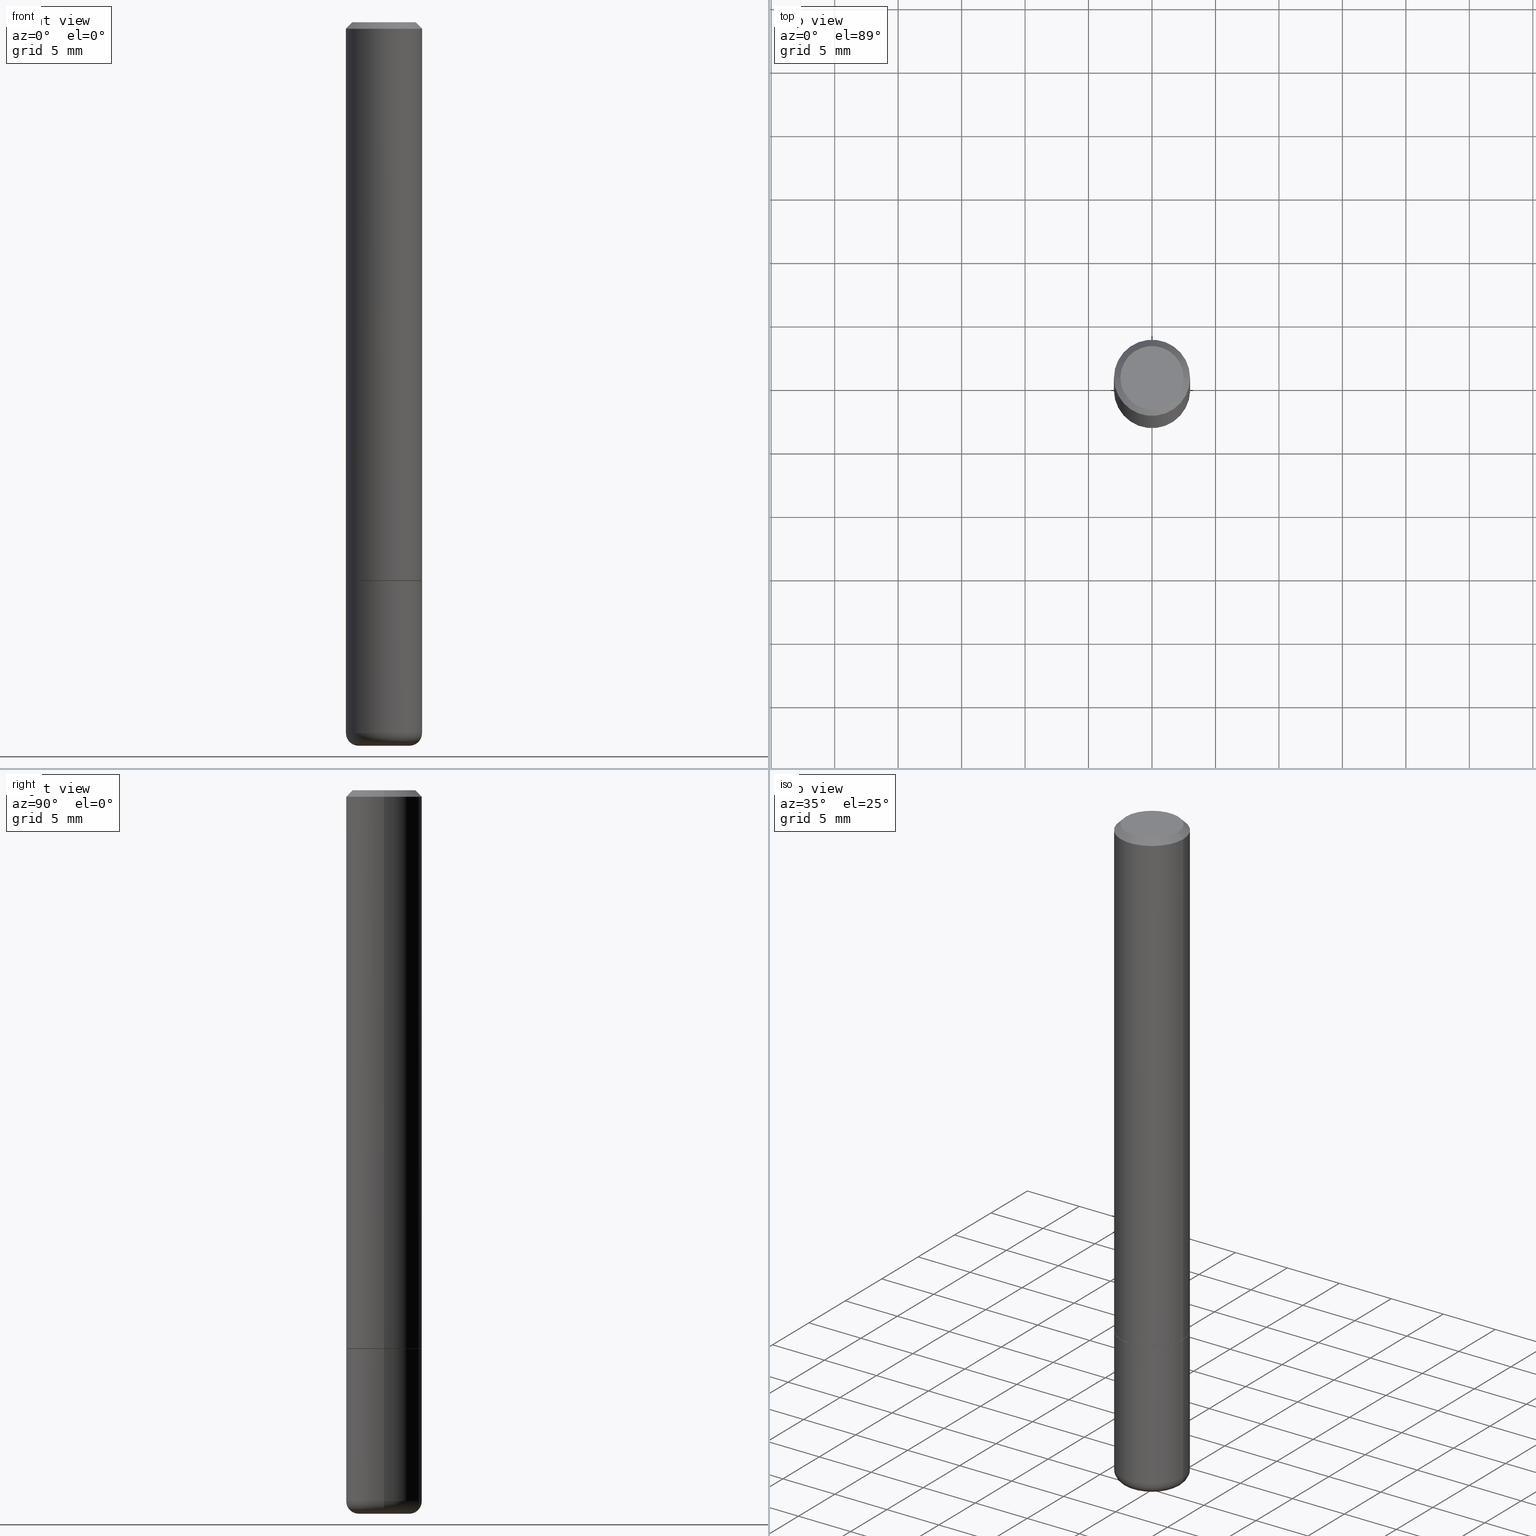
[diagram: canonical four-view strip — front | top / right | iso, engineering-drawing reading convention]
A machine part, canonical four-view strip (front | top / right | iso — engineering-drawing reading convention). The complete STEP part file that produces these views, byte-faithful:
ISO-10303-21;
HEADER;
FILE_DESCRIPTION (( 'STEP AP203' ),
    '1' );
FILE_NAME ('47003.STEP',
    '2024-03-05T10:07:26',
    ( '' ),
    ( '' ),
    'SwSTEP 2.0',
    'SolidWorks 2023',
    '' );
FILE_SCHEMA (( 'CONFIG_CONTROL_DESIGN' ));
ENDSEC;

DATA;
#1 = CARTESIAN_POINT ( 'NONE',  ( 4.890937612370288923E-31, -6.982962677686312563E-17, -0.02000000000000006287 ) ) ;
#2 = ADVANCED_FACE ( 'NONE', ( #26 ), #379, .T. ) ;
#3 = CIRCLE ( 'NONE', #148, 0.09809999999999970133 ) ;
#4 = DIRECTION ( 'NONE',  ( -1.000000000000000000, 7.105427357600989237E-15, 0.000000000000000000 ) ) ;
#5 = EDGE_LOOP ( 'NONE', ( #274, #294, #136, #409 ) ) ;
#6 = DIRECTION ( 'NONE',  ( 1.000000000000000000, -6.982962677686266711E-15, 0.000000000000000000 ) ) ;
#7 = ORIENTED_EDGE ( 'NONE', *, *, #195, .T. ) ;
#8 = DIRECTION ( 'NONE',  ( -2.445468806185136877E-29, 3.491481338843145188E-15, 1.000000000000000000 ) ) ;
#9 = CARTESIAN_POINT ( 'NONE',  ( 5.391525076996371277E-29, -7.697668907747483125E-15, -2.204700000000000326 ) ) ;
#10 = DIRECTION ( 'NONE',  ( 1.000000000000000000, -6.982962677686265133E-15, 0.000000000000000000 ) ) ;
#11 = EDGE_LOOP ( 'NONE', ( #260, #145, #248, #238 ) ) ;
#12 = CC_DESIGN_DATE_AND_TIME_ASSIGNMENT ( #150, #273, ( #305 ) ) ;
#13 = EDGE_CURVE ( 'NONE', #407, #301, #51, .T. ) ;
#14 = LENGTH_MEASURE_WITH_UNIT ( LENGTH_MEASURE( 0.02539999999999999897 ), #80 );
#15 = PERSON_AND_ORGANIZATION ( #328, #363 ) ;
#16 = ORIENTED_EDGE ( 'NONE', *, *, #275, .F. ) ;
#17 = PRODUCT ( '47003', '47003', '', ( #406 ) ) ;
#18 = VERTEX_POINT ( 'NONE', #346 ) ;
#19 = VECTOR ( 'NONE', #8, 39.37007874015748143 ) ;
#20 = COORDINATED_UNIVERSAL_TIME_OFFSET ( 5, 0, .BEHIND. ) ;
#21 = DATE_AND_TIME ( #404, #96 ) ;
#22 = ORIENTED_EDGE ( 'NONE', *, *, #358, .T. ) ;
#23 = CALENDAR_DATE ( 2024, 5, 3 ) ;
#24 = APPLICATION_CONTEXT ( 'configuration controlled 3d designs of mechanical parts and assemblies' ) ;
#25 = DATE_AND_TIME ( #48, #38 ) ;
#26 = FACE_OUTER_BOUND ( 'NONE', #114, .T. ) ;
#27 = DIRECTION ( 'NONE',  ( 2.438088387897960049E-29, -3.491481338843145188E-15, -1.000000000000000000 ) ) ;
#28 = CIRCLE ( 'NONE', #318, 0.1181000000000000383 ) ;
#29 = CARTESIAN_POINT ( 'NONE',  ( 4.236285612954512392E-29, -6.048293123277981078E-15, -1.732299999999999951 ) ) ;
#30 = DIRECTION ( 'NONE',  ( -0.7071067811865460184, 2.468850131082241283E-15, -0.7071067811865490160 ) ) ;
#31 = CARTESIAN_POINT ( 'NONE',  ( 6.850286386810205815E-16, 0.09809999999999970133, -1.653710510013444322E-16 ) ) ;
#32 = ADVANCED_FACE ( 'NONE', ( #303 ), #89, .T. ) ;
#33 = CARTESIAN_POINT ( 'NONE',  ( 5.487876547960064752E-29, -7.835233272497900762E-15, -2.244099999999999540 ) ) ;
#34 = CARTESIAN_POINT ( 'NONE',  ( 0.1181000000000000383, -8.800544403136812319E-16, -0.02000000000000006287 ) ) ;
#35 = AXIS2_PLACEMENT_3D ( 'NONE', #127, #230, #250 ) ;
#36 = AXIS2_PLACEMENT_3D ( 'NONE', #393, #331, #42 ) ;
#37 = FACE_OUTER_BOUND ( 'NONE', #216, .T. ) ;
#38 = LOCAL_TIME ( 5, 7, 26.00000000000000000, #184 ) ;
#39 = ADVANCED_FACE ( 'NONE', ( #249 ), #246, .T. ) ;
#40 = CARTESIAN_POINT ( 'NONE',  ( 0.000000000000000000, 0.000000000000000000, 0.000000000000000000 ) ) ;
#41 = VERTEX_POINT ( 'NONE', #347 ) ;
#42 = DIRECTION ( 'NONE',  ( 1.000000000000000000, -6.982962677686264344E-15, 0.000000000000000000 ) ) ;
#43 = AXIS2_PLACEMENT_3D ( 'NONE', #386, #352, #233 ) ;
#44 = ORIENTED_EDGE ( 'NONE', *, *, #45, .F. ) ;
#45 = EDGE_CURVE ( 'NONE', #176, #153, #193, .T. ) ;
#46 = DIRECTION ( 'NONE',  ( 1.000000000000000000, 0.000000000000000000, 0.000000000000000000 ) ) ;
#47 = EDGE_LOOP ( 'NONE', ( #240, #336, #312, #335 ) ) ;
#48 = CALENDAR_DATE ( 2024, 5, 3 ) ;
#49 = ORIENTED_EDGE ( 'NONE', *, *, #171, .F. ) ;
#50 =( NAMED_UNIT ( * ) SI_UNIT ( $, .STERADIAN. ) SOLID_ANGLE_UNIT ( ) );
#51 = LINE ( 'NONE', #155, #333 ) ;
#52 = APPROVAL_STATUS ( 'not_yet_approved' ) ;
#53 = AXIS2_PLACEMENT_3D ( 'NONE', #9, #141, #264 ) ;
#54 = PERSON_AND_ORGANIZATION_ROLE ( 'design_supplier' ) ;
#55 = ADVANCED_FACE ( 'NONE', ( #83 ), #209, .F. ) ;
#56 = ORIENTED_EDGE ( 'NONE', *, *, #93, .F. ) ;
#57 = ORIENTED_EDGE ( 'NONE', *, *, #384, .F. ) ;
#58 = CARTESIAN_POINT ( 'NONE',  ( -8.663966738982324366E-45, 1.236984831415771234E-30, 3.542865366783341331E-16 ) ) ;
#59 = EDGE_CURVE ( 'NONE', #301, #81, #231, .T. ) ;
#60 = AXIS2_PLACEMENT_3D ( 'NONE', #134, #164, #106 ) ;
#61 = DIRECTION ( 'NONE',  ( -2.445468806185136597E-29, 3.491481338843145583E-15, 1.000000000000000000 ) ) ;
#62 = CARTESIAN_POINT ( 'NONE',  ( -0.1181000000000000383, 7.548582654578852602E-16, -0.02000000000000006287 ) ) ;
#63 = EDGE_CURVE ( 'NONE', #242, #407, #101, .T. ) ;
#64 = CARTESIAN_POINT ( 'NONE',  ( 4.233840144148326789E-29, -6.044801641939137282E-15, -1.731299999999999839 ) ) ;
#65 = AXIS2_PLACEMENT_3D ( 'NONE', #339, #27, #92 ) ;
#66 = CC_DESIGN_PERSON_AND_ORGANIZATION_ASSIGNMENT ( #334, #151, ( #403 ) ) ;
#67 = CARTESIAN_POINT ( 'NONE',  ( 0.1180999999999999966, -8.246878922347480654E-16, 5.758764772215000440E-30 ) ) ;
#68 = CARTESIAN_POINT ( 'NONE',  ( 4.236285612954512392E-29, -6.048293123277981078E-15, -1.732299999999999951 ) ) ;
#69 = FACE_OUTER_BOUND ( 'NONE', #265, .T. ) ;
#70 = ORIENTED_EDGE ( 'NONE', *, *, #63, .F. ) ;
#71 = EDGE_CURVE ( 'NONE', #117, #183, #413, .T. ) ;
#72 = CLOSED_SHELL ( 'NONE', ( #353, #159, #39, #307, #77, #32, #418, #55 ) ) ;
#73 = AXIS2_PLACEMENT_3D ( 'NONE', #196, #267, #6 ) ;
#74 = FACE_OUTER_BOUND ( 'NONE', #47, .T. ) ;
#75 = DIRECTION ( 'NONE',  ( -2.445468806185136597E-29, 3.491481338843145583E-15, 1.000000000000000000 ) ) ;
#76 = CARTESIAN_POINT ( 'NONE',  ( 4.890937612370288923E-31, -6.982962677686312563E-17, -0.02000000000000006287 ) ) ;
#77 = ADVANCED_FACE ( 'NONE', ( #99 ), #100, .T. ) ;
#78 = ORIENTED_EDGE ( 'NONE', *, *, #124, .F. ) ;
#79 = ADVANCED_BREP_SHAPE_REPRESENTATION ( '47003', ( #229, #210, #287 ), #389 ) ;
#80 =( LENGTH_UNIT ( ) NAMED_UNIT ( * ) SI_UNIT ( $, .METRE. ) );
#81 = VERTEX_POINT ( 'NONE', #357 ) ;
#82 = DIRECTION ( 'NONE',  ( 0.000000000000000000, 0.000000000000000000, 1.000000000000000000 ) ) ;
#83 = FACE_OUTER_BOUND ( 'NONE', #290, .T. ) ;
#84 = PERSON_AND_ORGANIZATION_ROLE ( 'creator' ) ;
#85 = ORIENTED_EDGE ( 'NONE', *, *, #288, .T. ) ;
#86 = EDGE_CURVE ( 'NONE', #242, #81, #388, .T. ) ;
#87 = APPROVAL_ROLE ( '' ) ;
#88 = ORIENTED_EDGE ( 'NONE', *, *, #171, .T. ) ;
#89 = CONICAL_SURFACE ( 'NONE', #396, 0.1170999999999999958, 0.7853981633976532262 ) ;
#90 = CONICAL_SURFACE ( 'NONE', #36, 0.1170999999999999958, 0.7853981633976532262 ) ;
#91 = APPLICATION_PROTOCOL_DEFINITION ( 'international standard', 'config_control_design', 1994, #228 ) ;
#92 = DIRECTION ( 'NONE',  ( -1.000000000000000000, 6.982962677686265922E-15, -4.876176775795935793E-29 ) ) ;
#93 = EDGE_CURVE ( 'NONE', #405, #18, #191, .T. ) ;
#94 = DIRECTION ( 'NONE',  ( 2.445468806185136597E-29, -3.491481338843145583E-15, -1.000000000000000000 ) ) ;
#95 = DIRECTION ( 'NONE',  ( 0.7071067811866923458, -2.468850131083773646E-15, 0.7071067811864025776 ) ) ;
#96 = LOCAL_TIME ( 5, 7, 26.00000000000000000, #278 ) ;
#97 = PERSON_AND_ORGANIZATION_ROLE ( 'classification_officer' ) ;
#98 = CARTESIAN_POINT ( 'NONE',  ( -0.1181000000000001215, 8.391509709326791832E-16, -5.809262341591049389E-30 ) ) ;
#99 = FACE_OUTER_BOUND ( 'NONE', #169, .T. ) ;
#100 = CYLINDRICAL_SURFACE ( 'NONE', #43, 0.1181000000000001215 ) ;
#101 = CIRCLE ( 'NONE', #172, 0.1180999999999999966 ) ;
#102 = CC_DESIGN_SECURITY_CLASSIFICATION ( #305, ( #403 ) ) ;
#103 = CARTESIAN_POINT ( 'NONE',  ( 0.000000000000000000, 0.000000000000000000, 0.000000000000000000 ) ) ;
#104 = CARTESIAN_POINT ( 'NONE',  ( 5.391525076996371277E-29, -7.697668907747483125E-15, -2.204700000000000326 ) ) ;
#105 = DESIGN_CONTEXT ( 'detailed design', #228, 'design' ) ;
#106 = DIRECTION ( 'NONE',  ( 1.000000000000000000, -6.982962677686266711E-15, 0.000000000000000000 ) ) ;
#107 = ORIENTED_EDGE ( 'NONE', *, *, #218, .T. ) ;
#108 = VECTOR ( 'NONE', #30, 39.37007874015748143 ) ;
#109 = DIRECTION ( 'NONE',  ( -2.445468806185136597E-29, 3.491481338843145583E-15, 1.000000000000000000 ) ) ;
#110 = CARTESIAN_POINT ( 'NONE',  ( 4.236285612954512392E-29, -6.048293123277981078E-15, -1.732299999999999951 ) ) ;
#111 = DIRECTION ( 'NONE',  ( 1.000000000000000000, -6.982962677686268288E-15, 4.883557194083112901E-29 ) ) ;
#112 = ORIENTED_EDGE ( 'NONE', *, *, #177, .F. ) ;
#113 = PERSON_AND_ORGANIZATION ( #328, #363 ) ;
#114 = EDGE_LOOP ( 'NONE', ( #268, #142 ) ) ;
#115 = AXIS2_PLACEMENT_3D ( 'NONE', #40, #399, #395 ) ;
#116 = PERSON_AND_ORGANIZATION ( #328, #363 ) ;
#117 = VERTEX_POINT ( 'NONE', #130 ) ;
#118 = DIRECTION ( 'NONE',  ( 1.000000000000000000, -6.982962677686265922E-15, 4.876176775795935793E-29 ) ) ;
#119 = APPROVAL_DATE_TIME ( #408, #356 ) ;
#120 = PERSON_AND_ORGANIZATION ( #328, #363 ) ;
#121 = ORIENTED_EDGE ( 'NONE', *, *, #390, .T. ) ;
#122 = CIRCLE ( 'NONE', #348, 0.1181000000000002048 ) ;
#123 = AXIS2_PLACEMENT_3D ( 'NONE', #235, #286, #4 ) ;
#124 = EDGE_CURVE ( 'NONE', #299, #368, #28, .T. ) ;
#125 = DIRECTION ( 'NONE',  ( -2.438088387897960049E-29, 3.491481338843145188E-15, 1.000000000000000000 ) ) ;
#126 = DIRECTION ( 'NONE',  ( 1.000000000000000000, -6.982962677686264344E-15, 0.000000000000000000 ) ) ;
#127 = CARTESIAN_POINT ( 'NONE',  ( 0.000000000000000000, 0.000000000000000000, 0.000000000000000000 ) ) ;
#128 = DIRECTION ( 'NONE',  ( 1.000000000000000000, -6.982962677686264344E-15, 0.000000000000000000 ) ) ;
#129 = DIRECTION ( 'NONE',  ( -2.445468806185136597E-29, 3.491481338843145583E-15, 1.000000000000000000 ) ) ;
#130 = CARTESIAN_POINT ( 'NONE',  ( -0.1170999999999999958, -5.210949125354681487E-15, -1.732299999999999729 ) ) ;
#131 = APPROVAL ( #241, 'UNSPECIFIED' ) ;
#132 = DIRECTION ( 'NONE',  ( 1.000000000000000000, -6.982962677686266711E-15, 0.000000000000000000 ) ) ;
#133 = AXIS2_PLACEMENT_3D ( 'NONE', #350, #61, #128 ) ;
#134 = CARTESIAN_POINT ( 'NONE',  ( 0.07870000000000000606, -8.247228070481392959E-15, -2.204700000000000326 ) ) ;
#135 = CARTESIAN_POINT ( 'NONE',  ( -0.1180999999999998995, -6.858517936814806506E-15, -2.204700000000000326 ) ) ;
#136 = ORIENTED_EDGE ( 'NONE', *, *, #86, .T. ) ;
#137 = LINE ( 'NONE', #391, #19 ) ;
#138 = ADVANCED_FACE ( 'NONE', ( #255 ), #317, .T. ) ;
#139 = CLOSED_SHELL ( 'NONE', ( #295, #327, #345, #138, #337, #2 ) ) ;
#140 = TOROIDAL_SURFACE ( 'NONE', #53, 0.07870000000000000606, 0.03939999999999978936 ) ;
#141 = DIRECTION ( 'NONE',  ( -2.445468806185136597E-29, 3.491481338843145583E-15, 1.000000000000000000 ) ) ;
#142 = ORIENTED_EDGE ( 'NONE', *, *, #315, .F. ) ;
#143 = CC_DESIGN_PERSON_AND_ORGANIZATION_ASSIGNMENT ( #113, #208, ( #17 ) ) ;
#144 = CARTESIAN_POINT ( 'NONE',  ( 4.236285612954511832E-29, -6.048293123277980289E-15, -1.732299999999999729 ) ) ;
#145 = ORIENTED_EDGE ( 'NONE', *, *, #315, .T. ) ;
#146 = EDGE_LOOP ( 'NONE', ( #44, #244, #85, #280 ) ) ;
#147 = PERSON_AND_ORGANIZATION ( #328, #363 ) ;
#148 = AXIS2_PLACEMENT_3D ( 'NONE', #283, #129, #415 ) ;
#149 = ORIENTED_EDGE ( 'NONE', *, *, #154, .F. ) ;
#150 = DATE_AND_TIME ( #270, #173 ) ;
#151 = PERSON_AND_ORGANIZATION_ROLE ( 'creator' ) ;
#152 = ORIENTED_EDGE ( 'NONE', *, *, #197, .T. ) ;
#153 = VERTEX_POINT ( 'NONE', #253 ) ;
#154 = EDGE_CURVE ( 'NONE', #18, #183, #122, .T. ) ;
#155 = CARTESIAN_POINT ( 'NONE',  ( -0.1180999999999999966, 8.391509709326782957E-16, -5.809262341591043784E-30 ) ) ;
#156 = AXIS2_PLACEMENT_3D ( 'NONE', #243, #125, #118 ) ;
#157 = DIRECTION ( 'NONE',  ( -2.445468806185136597E-29, 3.491481338843145583E-15, 1.000000000000000000 ) ) ;
#158 = CARTESIAN_POINT ( 'NONE',  ( 5.391525076996371277E-29, -7.697668907747483125E-15, -2.204700000000000326 ) ) ;
#159 = ADVANCED_FACE ( 'NONE', ( #412 ), #221, .T. ) ;
#160 = DIRECTION ( 'NONE',  ( 1.000000000000000000, -6.982962677686268288E-15, 0.000000000000000000 ) ) ;
#161 = AXIS2_PLACEMENT_3D ( 'NONE', #144, #109, #174 ) ;
#162 = DIRECTION ( 'NONE',  ( 1.000000000000000000, -6.982962677686269077E-15, 0.000000000000000000 ) ) ;
#163 = DIRECTION ( 'NONE',  ( -1.000000000000000000, 6.982962677686265922E-15, -4.876176775795935793E-29 ) ) ;
#164 = DIRECTION ( 'NONE',  ( -6.982962677686266711E-15, -1.000000000000000000, 3.491481338843145583E-15 ) ) ;
#165 = AXIS2_PLACEMENT_3D ( 'NONE', #103, #381, #251 ) ;
#166 = CIRCLE ( 'NONE', #60, 0.03939999999999978936 ) ;
#167 = CARTESIAN_POINT ( 'NONE',  ( 0.1170999999999999958, -6.865998052835041749E-15, -1.732299999999999729 ) ) ;
#168 = DIRECTION ( 'NONE',  ( 1.000000000000000000, -6.982962677686269077E-15, 0.000000000000000000 ) ) ;
#169 = EDGE_LOOP ( 'NONE', ( #112, #7, #257, #78 ) ) ;
#170 = FACE_OUTER_BOUND ( 'NONE', #411, .T. ) ;
#171 = EDGE_CURVE ( 'NONE', #405, #117, #205, .T. ) ;
#172 = AXIS2_PLACEMENT_3D ( 'NONE', #158, #281, #282 ) ;
#173 = LOCAL_TIME ( 5, 7, 26.00000000000000000, #20 ) ;
#174 = DIRECTION ( 'NONE',  ( 1.000000000000000000, -6.982962677686264344E-15, 0.000000000000000000 ) ) ;
#175 = ORIENTED_EDGE ( 'NONE', *, *, #195, .F. ) ;
#176 = VERTEX_POINT ( 'NONE', #192 ) ;
#177 = EDGE_CURVE ( 'NONE', #183, #299, #321, .T. ) ;
#178 = DIRECTION ( 'NONE',  ( -2.445468806185136877E-29, 3.491481338843145188E-15, 1.000000000000000000 ) ) ;
#179 = VECTOR ( 'NONE', #95, 39.37007874015748854 ) ;
#180 = DIRECTION ( 'NONE',  ( -2.445468806185136597E-29, 3.491481338843145583E-15, 1.000000000000000000 ) ) ;
#181 = COORDINATED_UNIVERSAL_TIME_OFFSET ( 5, 0, .BEHIND. ) ;
#182 = CARTESIAN_POINT ( 'NONE',  ( 0.000000000000000000, 0.000000000000000000, 0.000000000000000000 ) ) ;
#183 = VERTEX_POINT ( 'NONE', #351 ) ;
#184 = COORDINATED_UNIVERSAL_TIME_OFFSET ( 5, 0, .BEHIND. ) ;
#185 = CARTESIAN_POINT ( 'NONE',  ( 4.236285612954511832E-29, -6.048293123277980289E-15, -1.732299999999999729 ) ) ;
#186 = DIRECTION ( 'NONE',  ( -2.445468806185136877E-29, 3.491481338843145188E-15, 1.000000000000000000 ) ) ;
#187 = CIRCLE ( 'NONE', #324, 0.1181000000000002048 ) ;
#188 = CONICAL_SURFACE ( 'NONE', #410, 0.1181000000000000383, 0.7853981633974461696 ) ;
#189 = CARTESIAN_POINT ( 'NONE',  ( -0.1170999999999999958, -5.216247579702903100E-15, -1.732299999999999729 ) ) ;
#190 = EDGE_CURVE ( 'NONE', #153, #299, #354, .T. ) ;
#191 = LINE ( 'NONE', #285, #179 ) ;
#192 = CARTESIAN_POINT ( 'NONE',  ( 0.09809999999999970133, -7.765346469475326737E-16, 3.542865366783392114E-16 ) ) ;
#193 = CIRCLE ( 'NONE', #362, 0.09809999999999970133 ) ;
#194 = DIRECTION ( 'NONE',  ( -2.445468806185136597E-29, 3.491481338843145583E-15, 1.000000000000000000 ) ) ;
#195 = EDGE_CURVE ( 'NONE', #183, #18, #187, .T. ) ;
#196 = CARTESIAN_POINT ( 'NONE',  ( 4.890937612370288923E-31, -6.982962677686312563E-17, -0.02000000000000006287 ) ) ;
#197 = EDGE_CURVE ( 'NONE', #153, #176, #3, .T. ) ;
#198 = DIRECTION ( 'NONE',  ( 0.7071067811865460184, -7.319954787623251312E-15, -0.7071067811865490160 ) ) ;
#199 = EDGE_LOOP ( 'NONE', ( #88, #276, #149, #56 ) ) ;
#200 = AXIS2_PLACEMENT_3D ( 'NONE', #33, #319, #162 ) ;
#201 = DIRECTION ( 'NONE',  ( 2.445468806185136597E-29, -3.491481338843145583E-15, -1.000000000000000000 ) ) ;
#202 = DIRECTION ( 'NONE',  ( -2.445468806185136597E-29, 3.491481338843145583E-15, 1.000000000000000000 ) ) ;
#203 = FACE_OUTER_BOUND ( 'NONE', #199, .T. ) ;
#204 = ORIENTED_EDGE ( 'NONE', *, *, #93, .T. ) ;
#205 = CIRCLE ( 'NONE', #133, 0.1170999999999999958 ) ;
#206 = CC_DESIGN_APPROVAL ( #356, ( #305 ) ) ;
#207 = DATE_TIME_ROLE ( 'creation_date' ) ;
#208 = PERSON_AND_ORGANIZATION_ROLE ( 'design_owner' ) ;
#209 = PLANE ( 'NONE',  #296 ) ;
#210 = MANIFOLD_SOLID_BREP ( 'Body-Move/Copy2[2]', #72 ) ;
#211 = APPROVAL_ROLE ( '' ) ;
#212 = ORIENTED_EDGE ( 'NONE', *, *, #45, .T. ) ;
#213 = PERSON_AND_ORGANIZATION ( #328, #363 ) ;
#214 = APPROVAL_DATE_TIME ( #338, #131 ) ;
#215 = APPROVAL_PERSON_ORGANIZATION ( #213, #356, #375 ) ;
#216 = EDGE_LOOP ( 'NONE', ( #400, #325, #360, #292 ) ) ;
#217 = APPROVAL_STATUS ( 'not_yet_approved' ) ;
#218 = EDGE_CURVE ( 'NONE', #394, #41, #382, .T. ) ;
#219 = ORIENTED_EDGE ( 'NONE', *, *, #266, .F. ) ;
#220 = DIRECTION ( 'NONE',  ( -1.000000000000000000, 6.982962677686266711E-15, 0.000000000000000000 ) ) ;
#221 = CYLINDRICAL_SURFACE ( 'NONE', #35, 0.1181000000000001215 ) ;
#222 = AXIS2_PLACEMENT_3D ( 'NONE', #259, #261, #168 ) ;
#223 = APPROVAL_PERSON_ORGANIZATION ( #120, #373, #87 ) ;
#224 = DIRECTION ( 'NONE',  ( -2.445468806185136877E-29, 3.491481338843145188E-15, 1.000000000000000000 ) ) ;
#225 = PRODUCT_DEFINITION ( 'UNKNOWN', '', #403, #105 ) ;
#226 = DIMENSIONAL_EXPONENTS ( 1.000000000000000000, 0.000000000000000000, 0.000000000000000000, 0.000000000000000000, 0.000000000000000000, 0.000000000000000000, 0.000000000000000000 ) ;
#227 = DIRECTION ( 'NONE',  ( -0.7071067811866923458, 7.493145998870876386E-15, 0.7071067811864025776 ) ) ;
#228 = APPLICATION_CONTEXT ( 'configuration controlled 3d designs of mechanical parts and assemblies' ) ;
#229 = MANIFOLD_SOLID_BREP ( 'Body-Move/Copy2[1]', #139 ) ;
#230 = DIRECTION ( 'NONE',  ( -2.445468806185136597E-29, 3.491481338843145583E-15, 1.000000000000000000 ) ) ;
#231 = CIRCLE ( 'NONE', #402, 0.1180999999999999966 ) ;
#232 = LOCAL_TIME ( 5, 7, 26.00000000000000000, #181 ) ;
#233 = DIRECTION ( 'NONE',  ( 1.000000000000000000, -6.982962677686266711E-15, 4.876176775795935793E-29 ) ) ;
#234 = DIRECTION ( 'NONE',  ( 1.000000000000000000, -6.982962677686265133E-15, 0.000000000000000000 ) ) ;
#235 = CARTESIAN_POINT ( 'NONE',  ( -0.07870000000000000606, -7.138471774704284335E-15, -2.204700000000000326 ) ) ;
#236 = TOROIDAL_SURFACE ( 'NONE', #320, 0.07870000000000000606, 0.03939999999999978936 ) ;
#237 = DIRECTION ( 'NONE',  ( 2.438088387897960049E-29, -3.491481338843145188E-15, -1.000000000000000000 ) ) ;
#238 = ORIENTED_EDGE ( 'NONE', *, *, #313, .F. ) ;
#239 =( NAMED_UNIT ( * ) PLANE_ANGLE_UNIT ( ) SI_UNIT ( $, .RADIAN. ) );
#240 = ORIENTED_EDGE ( 'NONE', *, *, #63, .T. ) ;
#241 = APPROVAL_STATUS ( 'not_yet_approved' ) ;
#242 = VERTEX_POINT ( 'NONE', #284 ) ;
#243 = CARTESIAN_POINT ( 'NONE',  ( 4.236285612954512392E-29, -6.048293123277981078E-15, -1.732299999999999951 ) ) ;
#244 = ORIENTED_EDGE ( 'NONE', *, *, #378, .T. ) ;
#245 = SHAPE_DEFINITION_REPRESENTATION ( #365, #79 ) ;
#246 = CONICAL_SURFACE ( 'NONE', #376, 0.1181000000000000383, 0.7853981633974461696 ) ;
#247 = AXIS2_PLACEMENT_3D ( 'NONE', #68, #298, #10 ) ;
#248 = ORIENTED_EDGE ( 'NONE', *, *, #384, .T. ) ;
#249 = FACE_OUTER_BOUND ( 'NONE', #146, .T. ) ;
#250 = DIRECTION ( 'NONE',  ( 1.000000000000000000, -6.982962677686266711E-15, 4.876176775795935793E-29 ) ) ;
#251 = DIRECTION ( 'NONE',  ( 1.000000000000000000, -6.982962677686266711E-15, 4.876176775795936353E-29 ) ) ;
#252 = DIRECTION ( 'NONE',  ( -2.445468806185136597E-29, 3.491481338843145583E-15, 1.000000000000000000 ) ) ;
#253 = CARTESIAN_POINT ( 'NONE',  ( -0.09809999999999970133, 7.199434520694536111E-16, 3.542865366783292027E-16 ) ) ;
#254 = CC_DESIGN_PERSON_AND_ORGANIZATION_ASSIGNMENT ( #15, #97, ( #305 ) ) ;
#255 = FACE_OUTER_BOUND ( 'NONE', #5, .T. ) ;
#256 = PLANE ( 'NONE',  #156 ) ;
#257 = ORIENTED_EDGE ( 'NONE', *, *, #275, .T. ) ;
#258 = UNCERTAINTY_MEASURE_WITH_UNIT (LENGTH_MEASURE( 1.000000000000000082E-05 ), #302, 'distance_accuracy_value', 'NONE');
#259 = CARTESIAN_POINT ( 'NONE',  ( 5.487876547960064752E-29, -7.835233272497900762E-15, -2.244099999999999540 ) ) ;
#260 = ORIENTED_EDGE ( 'NONE', *, *, #390, .F. ) ;
#261 = DIRECTION ( 'NONE',  ( -2.445468806185136597E-29, 3.491481338843145583E-15, 1.000000000000000000 ) ) ;
#262 = CIRCLE ( 'NONE', #73, 0.1181000000000000383 ) ;
#263 = CIRCLE ( 'NONE', #222, 0.07870000000000000606 ) ;
#264 = DIRECTION ( 'NONE',  ( 1.000000000000000000, -6.982962677686268288E-15, 4.883557194083112901E-29 ) ) ;
#265 = EDGE_LOOP ( 'NONE', ( #107, #121, #70, #57 ) ) ;
#266 = EDGE_CURVE ( 'NONE', #117, #405, #340, .T. ) ;
#267 = DIRECTION ( 'NONE',  ( -2.445468806185136597E-29, 3.491481338843145583E-15, 1.000000000000000000 ) ) ;
#268 = ORIENTED_EDGE ( 'NONE', *, *, #218, .F. ) ;
#269 = ORIENTED_EDGE ( 'NONE', *, *, #71, .F. ) ;
#270 = CALENDAR_DATE ( 2024, 5, 3 ) ;
#271 = CIRCLE ( 'NONE', #247, 0.1180999999999999966 ) ;
#272 = ORIENTED_EDGE ( 'NONE', *, *, #59, .T. ) ;
#273 = DATE_TIME_ROLE ( 'classification_date' ) ;
#274 = ORIENTED_EDGE ( 'NONE', *, *, #13, .F. ) ;
#275 = EDGE_CURVE ( 'NONE', #18, #368, #137, .T. ) ;
#276 = ORIENTED_EDGE ( 'NONE', *, *, #71, .T. ) ;
#277 = CC_DESIGN_DATE_AND_TIME_ASSIGNMENT ( #21, #207, ( #225 ) ) ;
#278 = COORDINATED_UNIVERSAL_TIME_OFFSET ( 5, 0, .BEHIND. ) ;
#279 = APPROVAL_PERSON_ORGANIZATION ( #116, #131, #211 ) ;
#280 = ORIENTED_EDGE ( 'NONE', *, *, #190, .F. ) ;
#281 = DIRECTION ( 'NONE',  ( -2.445468806185136597E-29, 3.491481338843145583E-15, 1.000000000000000000 ) ) ;
#282 = DIRECTION ( 'NONE',  ( 1.000000000000000000, -6.982962677686265133E-15, 0.000000000000000000 ) ) ;
#283 = CARTESIAN_POINT ( 'NONE',  ( -8.663966738982324366E-45, 1.236984831415771234E-30, 3.542865366783341331E-16 ) ) ;
#284 = CARTESIAN_POINT ( 'NONE',  ( 0.1180999999999998995, -8.522356799982231388E-15, -2.204700000000000326 ) ) ;
#285 = CARTESIAN_POINT ( 'NONE',  ( 0.1170999999999999958, -6.865998052835041749E-15, -1.732299999999999729 ) ) ;
#286 = DIRECTION ( 'NONE',  ( 7.105427357601001859E-15, 1.000000000000000000, -3.491481338843145583E-15 ) ) ;
#287 = AXIS2_PLACEMENT_3D ( 'NONE', #182, #82, #46 ) ;
#288 = EDGE_CURVE ( 'NONE', #368, #299, #262, .T. ) ;
#289 = FACE_OUTER_BOUND ( 'NONE', #367, .T. ) ;
#290 = EDGE_LOOP ( 'NONE', ( #152, #212 ) ) ;
#291 = CARTESIAN_POINT ( 'NONE',  ( 5.391525076996371277E-29, -7.697668907747483125E-15, -2.204700000000000326 ) ) ;
#292 = ORIENTED_EDGE ( 'NONE', *, *, #124, .T. ) ;
#293 = DIRECTION ( 'NONE',  ( -1.000000000000000000, 6.982962677686266711E-15, 0.000000000000000000 ) ) ;
#294 = ORIENTED_EDGE ( 'NONE', *, *, #313, .T. ) ;
#295 = ADVANCED_FACE ( 'NONE', ( #74 ), #329, .T. ) ;
#296 = AXIS2_PLACEMENT_3D ( 'NONE', #31, #316, #163 ) ;
#297 = CC_DESIGN_APPROVAL ( #373, ( #225 ) ) ;
#298 = DIRECTION ( 'NONE',  ( -2.445468806185136597E-29, 3.491481338843145583E-15, 1.000000000000000000 ) ) ;
#299 = VERTEX_POINT ( 'NONE', #364 ) ;
#300 = CALENDAR_DATE ( 2024, 5, 3 ) ;
#301 = VERTEX_POINT ( 'NONE', #323 ) ;
#302 =( CONVERSION_BASED_UNIT ( 'INCH', #14 ) LENGTH_UNIT ( ) NAMED_UNIT ( #226 ) );
#303 = FACE_OUTER_BOUND ( 'NONE', #343, .T. ) ;
#304 = VECTOR ( 'NONE', #227, 39.37007874015748854 ) ;
#305 = SECURITY_CLASSIFICATION ( '', '', #309 ) ;
#306 = COORDINATED_UNIVERSAL_TIME_OFFSET ( 5, 0, .BEHIND. ) ;
#307 = ADVANCED_FACE ( 'NONE', ( #37 ), #188, .T. ) ;
#308 = ORIENTED_EDGE ( 'NONE', *, *, #154, .T. ) ;
#309 = SECURITY_CLASSIFICATION_LEVEL ( 'unclassified' ) ;
#310 = EDGE_LOOP ( 'NONE', ( #308, #392, #374, #16 ) ) ;
#311 = APPROVAL_DATE_TIME ( #25, #373 ) ;
#312 = ORIENTED_EDGE ( 'NONE', *, *, #358, .F. ) ;
#313 = EDGE_CURVE ( 'NONE', #407, #242, #414, .T. ) ;
#314 = CARTESIAN_POINT ( 'NONE',  ( 4.233840144148326789E-29, -6.044801641939137282E-15, -1.731299999999999839 ) ) ;
#315 = EDGE_CURVE ( 'NONE', #41, #394, #263, .T. ) ;
#316 = DIRECTION ( 'NONE',  ( 2.438088387897960049E-29, -3.491481338843145188E-15, -1.000000000000000000 ) ) ;
#317 = CYLINDRICAL_SURFACE ( 'NONE', #165, 0.1180999999999999966 ) ;
#318 = AXIS2_PLACEMENT_3D ( 'NONE', #1, #252, #132 ) ;
#319 = DIRECTION ( 'NONE',  ( -2.445468806185136597E-29, 3.491481338843145583E-15, 1.000000000000000000 ) ) ;
#320 = AXIS2_PLACEMENT_3D ( 'NONE', #291, #202, #111 ) ;
#321 = LINE ( 'NONE', #98, #369 ) ;
#322 = CARTESIAN_POINT ( 'NONE',  ( 0.1181000000000000383, -8.800544403136812319E-16, -0.02000000000000006287 ) ) ;
#323 = CARTESIAN_POINT ( 'NONE',  ( -0.1180999999999999966, -6.033830044580054299E-15, -1.732299999999999951 ) ) ;
#324 = AXIS2_PLACEMENT_3D ( 'NONE', #64, #194, #160 ) ;
#325 = ORIENTED_EDGE ( 'NONE', *, *, #197, .F. ) ;
#326 = CC_DESIGN_APPROVAL ( #131, ( #403 ) ) ;
#327 = ADVANCED_FACE ( 'NONE', ( #69 ), #236, .T. ) ;
#328 = PERSON ( 'UNSPECIFIED', 'UNSPECIFIED', 'UNSPECIFIED', ('UNSPECIFIED'), ('UNSPECIFIED'), ('UNSPECIFIED') ) ;
#329 = CYLINDRICAL_SURFACE ( 'NONE', #115, 0.1180999999999999966 ) ;
#330 = FACE_OUTER_BOUND ( 'NONE', #11, .T. ) ;
#331 = DIRECTION ( 'NONE',  ( -2.445468806185136597E-29, 3.491481338843145583E-15, 1.000000000000000000 ) ) ;
#332 = CC_DESIGN_PERSON_AND_ORGANIZATION_ASSIGNMENT ( #342, #54, ( #403 ) ) ;
#333 = VECTOR ( 'NONE', #178, 39.37007874015748143 ) ;
#334 = PERSON_AND_ORGANIZATION ( #328, #363 ) ;
#335 = ORIENTED_EDGE ( 'NONE', *, *, #86, .F. ) ;
#336 = ORIENTED_EDGE ( 'NONE', *, *, #13, .T. ) ;
#337 = ADVANCED_FACE ( 'NONE', ( #330 ), #140, .T. ) ;
#338 = DATE_AND_TIME ( #300, #397 ) ;
#339 = CARTESIAN_POINT ( 'NONE',  ( 1.092743596228402814E-28, -4.547459069107378307E-17, -2.244099999999999540 ) ) ;
#340 = CIRCLE ( 'NONE', #161, 0.1170999999999999958 ) ;
#341 = VECTOR ( 'NONE', #198, 39.37007874015748143 ) ;
#342 = PERSON_AND_ORGANIZATION ( #328, #363 ) ;
#343 = EDGE_LOOP ( 'NONE', ( #269, #372, #204, #175 ) ) ;
#344 = PRODUCT_RELATED_PRODUCT_CATEGORY ( 'detail', '', ( #17 ) ) ;
#345 = ADVANCED_FACE ( 'NONE', ( #170 ), #398, .F. ) ;
#346 = CARTESIAN_POINT ( 'NONE',  ( 0.1181000000000002048, -6.869489534173887122E-15, -1.731299999999999839 ) ) ;
#347 = CARTESIAN_POINT ( 'NONE',  ( -0.07870000000000000606, -7.067277038134755422E-15, -2.244099999999999540 ) ) ;
#348 = AXIS2_PLACEMENT_3D ( 'NONE', #314, #157, #383 ) ;
#349 = AXIS2_PLACEMENT_3D ( 'NONE', #104, #75, #234 ) ;
#350 = CARTESIAN_POINT ( 'NONE',  ( 4.236285612954511832E-29, -6.048293123277980289E-15, -1.732299999999999729 ) ) ;
#351 = CARTESIAN_POINT ( 'NONE',  ( -0.1181000000000002048, -2.218164663425318543E-15, -1.731299999999999839 ) ) ;
#352 = DIRECTION ( 'NONE',  ( -2.445468806185136597E-29, 3.491481338843145583E-15, 1.000000000000000000 ) ) ;
#353 = ADVANCED_FACE ( 'NONE', ( #203 ), #90, .T. ) ;
#354 = LINE ( 'NONE', #62, #108 ) ;
#355 = AXIS2_PLACEMENT_3D ( 'NONE', #110, #237, #366 ) ;
#356 = APPROVAL ( #52, 'UNSPECIFIED' ) ;
#357 = CARTESIAN_POINT ( 'NONE',  ( 0.1180999999999999966, -6.872981015512729341E-15, -1.732299999999999951 ) ) ;
#358 = EDGE_CURVE ( 'NONE', #81, #301, #271, .T. ) ;
#359 = LINE ( 'NONE', #34, #341 ) ;
#360 = ORIENTED_EDGE ( 'NONE', *, *, #190, .T. ) ;
#361 = CARTESIAN_POINT ( 'NONE',  ( 0.07870000000000000606, -8.384792435231810596E-15, -2.244099999999999540 ) ) ;
#362 = AXIS2_PLACEMENT_3D ( 'NONE', #58, #371, #401 ) ;
#363 = ORGANIZATION ( 'UNSPECIFIED', 'UNSPECIFIED', '' ) ;
#364 = CARTESIAN_POINT ( 'NONE',  ( -0.1181000000000000383, 7.548582654578852602E-16, -0.02000000000000006287 ) ) ;
#365 = PRODUCT_DEFINITION_SHAPE ( 'NONE', 'NONE',  #225 ) ;
#366 = DIRECTION ( 'NONE',  ( -1.000000000000000000, 6.982962677686265922E-15, -4.876176775795935793E-29 ) ) ;
#367 = EDGE_LOOP ( 'NONE', ( #49, #219 ) ) ;
#368 = VERTEX_POINT ( 'NONE', #322 ) ;
#369 = VECTOR ( 'NONE', #224, 39.37007874015748143 ) ;
#370 = APPLICATION_PROTOCOL_DEFINITION ( 'international standard', 'config_control_design', 1994, #24 ) ;
#371 = DIRECTION ( 'NONE',  ( -2.445468806185136597E-29, 3.491481338843145583E-15, 1.000000000000000000 ) ) ;
#372 = ORIENTED_EDGE ( 'NONE', *, *, #266, .T. ) ;
#373 = APPROVAL ( #217, 'UNSPECIFIED' ) ;
#374 = ORIENTED_EDGE ( 'NONE', *, *, #288, .F. ) ;
#375 = APPROVAL_ROLE ( '' ) ;
#376 = AXIS2_PLACEMENT_3D ( 'NONE', #380, #94, #220 ) ;
#377 = CIRCLE ( 'NONE', #123, 0.03939999999999978936 ) ;
#378 = EDGE_CURVE ( 'NONE', #176, #368, #359, .T. ) ;
#379 = PLANE ( 'NONE',  #65 ) ;
#380 = CARTESIAN_POINT ( 'NONE',  ( 4.890937612370288923E-31, -6.982962677686312563E-17, -0.02000000000000006287 ) ) ;
#381 = DIRECTION ( 'NONE',  ( -2.445468806185136597E-29, 3.491481338843145583E-15, 1.000000000000000000 ) ) ;
#382 = CIRCLE ( 'NONE', #200, 0.07870000000000000606 ) ;
#383 = DIRECTION ( 'NONE',  ( 1.000000000000000000, -6.982962677686268288E-15, 0.000000000000000000 ) ) ;
#384 = EDGE_CURVE ( 'NONE', #394, #242, #166, .T. ) ;
#385 = DIRECTION ( 'NONE',  ( -2.445468806185136597E-29, 3.491481338843145583E-15, 1.000000000000000000 ) ) ;
#386 = CARTESIAN_POINT ( 'NONE',  ( 0.000000000000000000, 0.000000000000000000, 0.000000000000000000 ) ) ;
#387 = VECTOR ( 'NONE', #186, 39.37007874015748143 ) ;
#388 = LINE ( 'NONE', #67, #387 ) ;
#389 =( GEOMETRIC_REPRESENTATION_CONTEXT ( 3 ) GLOBAL_UNCERTAINTY_ASSIGNED_CONTEXT ( ( #258 ) ) GLOBAL_UNIT_ASSIGNED_CONTEXT ( ( #302, #239, #50 ) ) REPRESENTATION_CONTEXT ( 'NONE', 'WORKASPACE' ) );
#390 = EDGE_CURVE ( 'NONE', #41, #407, #377, .T. ) ;
#391 = CARTESIAN_POINT ( 'NONE',  ( 0.1181000000000001215, -8.246878922347489529E-16, 5.758764772215006046E-30 ) ) ;
#392 = ORIENTED_EDGE ( 'NONE', *, *, #177, .T. ) ;
#393 = CARTESIAN_POINT ( 'NONE',  ( 4.236285612954511832E-29, -6.048293123277980289E-15, -1.732299999999999729 ) ) ;
#394 = VERTEX_POINT ( 'NONE', #361 ) ;
#395 = DIRECTION ( 'NONE',  ( 1.000000000000000000, -6.982962677686266711E-15, 4.876176775795936353E-29 ) ) ;
#396 = AXIS2_PLACEMENT_3D ( 'NONE', #185, #180, #126 ) ;
#397 = LOCAL_TIME ( 5, 7, 26.00000000000000000, #306 ) ;
#398 = PLANE ( 'NONE',  #355 ) ;
#399 = DIRECTION ( 'NONE',  ( -2.445468806185136597E-29, 3.491481338843145583E-15, 1.000000000000000000 ) ) ;
#400 = ORIENTED_EDGE ( 'NONE', *, *, #378, .F. ) ;
#401 = DIRECTION ( 'NONE',  ( 1.000000000000000000, -6.982962677686266711E-15, 4.884890577880263287E-29 ) ) ;
#402 = AXIS2_PLACEMENT_3D ( 'NONE', #29, #385, #417 ) ;
#403 = PRODUCT_DEFINITION_FORMATION_WITH_SPECIFIED_SOURCE ( 'ANY', '', #17, .NOT_KNOWN. ) ;
#404 = CALENDAR_DATE ( 2024, 5, 3 ) ;
#405 = VERTEX_POINT ( 'NONE', #167 ) ;
#406 = MECHANICAL_CONTEXT ( 'NONE', #24, 'mechanical' ) ;
#407 = VERTEX_POINT ( 'NONE', #135 ) ;
#408 = DATE_AND_TIME ( #23, #232 ) ;
#409 = ORIENTED_EDGE ( 'NONE', *, *, #59, .F. ) ;
#410 = AXIS2_PLACEMENT_3D ( 'NONE', #76, #201, #293 ) ;
#411 = EDGE_LOOP ( 'NONE', ( #22, #272 ) ) ;
#412 = FACE_OUTER_BOUND ( 'NONE', #310, .T. ) ;
#413 = LINE ( 'NONE', #189, #304 ) ;
#414 = CIRCLE ( 'NONE', #349, 0.1180999999999999966 ) ;
#415 = DIRECTION ( 'NONE',  ( 1.000000000000000000, -6.982962677686266711E-15, 4.884890577880263287E-29 ) ) ;
#416 = CC_DESIGN_PERSON_AND_ORGANIZATION_ASSIGNMENT ( #147, #84, ( #225 ) ) ;
#417 = DIRECTION ( 'NONE',  ( 1.000000000000000000, -6.982962677686265133E-15, 0.000000000000000000 ) ) ;
#418 = ADVANCED_FACE ( 'NONE', ( #289 ), #256, .F. ) ;
ENDSEC;
END-ISO-10303-21;
